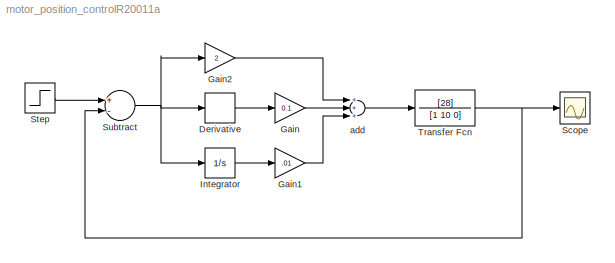
MODEL motor_position_controlR20011a
KIND model
BLOCK [Derivative] Derivative
  SID = 6
BLOCK [Gain] Gain
  Gain = 0.1
  OutDataTypeStr = Inherit: Inherit via internal rule
  ParamDataTypeStr = Inherit: Inherit via internal rule
  SID = 4
  SaturateOnIntegerOverflow = off
BLOCK [Gain] Gain1
  Gain = .01
  OutDataTypeStr = Inherit: Inherit via internal rule
  ParamDataTypeStr = Inherit: Inherit via internal rule
  SID = 7
  SaturateOnIntegerOverflow = off
BLOCK [Gain] Gain2
  Gain = 2
  OutDataTypeStr = Inherit: Inherit via internal rule
  ParamDataTypeStr = Inherit: Inherit via internal rule
  SID = 8
  SaturateOnIntegerOverflow = off
BLOCK [Integrator] Integrator
  Ports = [1, 1]
  SID = 3
BLOCK [Scope] Scope
  Floating = off
  NumInputPorts = 1
  Ports = [1]
  SID = 11
BLOCK [Step] Step
  After = 5
  SID = 10
  SampleTime = 0
  Time = 0
BLOCK [Sum] Subtract
  InputSameDT = off
  Inputs = +-
  OutDataTypeStr = Inherit: Inherit via internal rule
  Ports = [2, 1]
  SID = 9
  SaturateOnIntegerOverflow = off
BLOCK [TransferFcn] Transfer Fcn
  Denominator = [1 10 0]
  Numerator = [28]
  SID = 1
BLOCK [Sum] add
  InputSameDT = off
  Inputs = +++
  OutDataTypeStr = Inherit: Inherit via internal rule
  Ports = [3, 1]
  SID = 5
  SaturateOnIntegerOverflow = off
LINE Derivative:1 -> Gain:1
LINE Gain1:1 -> add:3
LINE Gain2:1 -> add:1
LINE Gain:1 -> add:2
LINE Integrator:1 -> Gain1:1
LINE Step:1 -> Subtract:1
NET Subtract:1 -> Derivative:1, Gain2:1, Integrator:1
NET Transfer Fcn:1 -> Scope:1, Subtract:2
LINE add:1 -> Transfer Fcn:1
note: NET lines group one-source signal fan-out (src -> all destinations, sorted); 1:1 wires keep LINE
